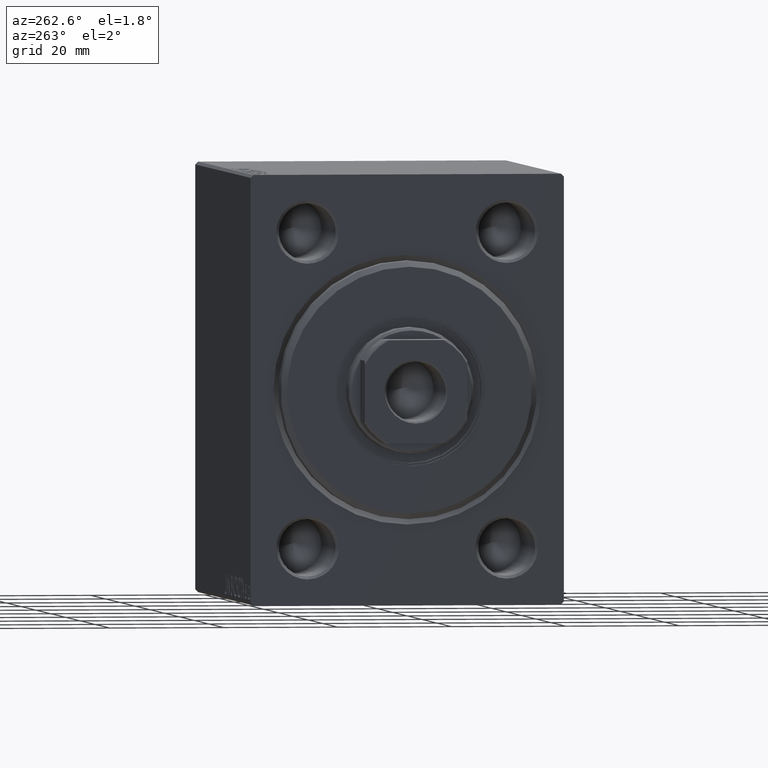
[diagram: clean part render]
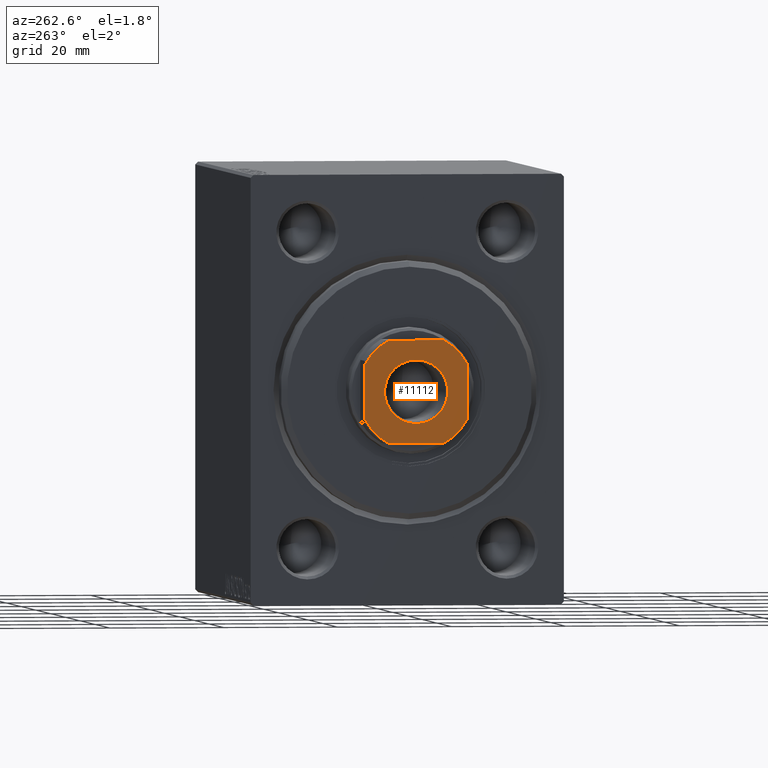
[diagram: same view with one face highlighted and labeled with its STEP entity id]
A machine part, auxiliary view. The second image highlights one B-rep face of the part: STEP entity #11112.
In plain terms, the highlighted planar face has unit normal (-1, 0, 0).
Its self-contained STEP definition (entity closure, byte-faithful):
#1230 = ORIENTED_EDGE ( 'NONE', *, *, #19989, .T. ) ;
#3379 = CIRCLE ( 'NONE', #24841, 10.20000000000000462 ) ;
#3675 = ORIENTED_EDGE ( 'NONE', *, *, #44329, .T. ) ;
#3704 = CARTESIAN_POINT ( 'NONE',  ( 4.800000000000012257, 8.999999999999998224, 77.00000000000001421 ) ) ;
#3989 = DIRECTION ( 'NONE',  ( -0.000000000000000000, 0.000000000000000000, 1.000000000000000000 ) ) ;
#4130 = DIRECTION ( 'NONE',  ( 1.000000000000000000, 0.000000000000000000, 0.000000000000000000 ) ) ;
#4158 = ORIENTED_EDGE ( 'NONE', *, *, #17921, .T. ) ;
#4511 = DIRECTION ( 'NONE',  ( 1.000000000000000000, 0.000000000000000000, 0.000000000000000000 ) ) ;
#5530 = DIRECTION ( 'NONE',  ( 1.000000000000000000, 0.000000000000000000, 0.000000000000000000 ) ) ;
#5993 = CIRCLE ( 'NONE', #42530, 10.20000000000000462 ) ;
#6713 = VERTEX_POINT ( 'NONE', #31796 ) ;
#6916 = CIRCLE ( 'NONE', #10480, 5.550000000000013145 ) ;
#7040 = CARTESIAN_POINT ( 'NONE',  ( 0.000000000000000000, 0.000000000000000000, 77.00000000000001421 ) ) ;
#8205 = CARTESIAN_POINT ( 'NONE',  ( 0.000000000000000000, 0.000000000000000000, 77.00000000000001421 ) ) ;
#8488 = VECTOR ( 'NONE', #40329, 1000.000000000000000 ) ;
#9152 = LINE ( 'NONE', #36529, #8488 ) ;
#9735 = CARTESIAN_POINT ( 'NONE',  ( -4.799999999999990941, 8.999999999999998224, 77.00000000000001421 ) ) ;
#10243 = CARTESIAN_POINT ( 'NONE',  ( 0.000000000000000000, 0.000000000000000000, 77.00000000000001421 ) ) ;
#10386 = CARTESIAN_POINT ( 'NONE',  ( 0.000000000000000000, 0.000000000000000000, 77.00000000000001421 ) ) ;
#10480 = AXIS2_PLACEMENT_3D ( 'NONE', #41975, #31872, #4511 ) ;
#10605 = DIRECTION ( 'NONE',  ( -0.000000000000000000, 0.000000000000000000, 1.000000000000000000 ) ) ;
#11044 = DIRECTION ( 'NONE',  ( -1.927470528863119049E-16, 1.000000000000000000, -0.000000000000000000 ) ) ;
#11112 = ADVANCED_FACE ( 'NONE', ( #44388, #30676 ), #14284, .T. ) ;
#11683 = EDGE_CURVE ( 'NONE', #28257, #34453, #27715, .T. ) ;
#12214 = EDGE_CURVE ( 'NONE', #21569, #20659, #28521, .T. ) ;
#13443 = VERTEX_POINT ( 'NONE', #31829 ) ;
#14284 = PLANE ( 'NONE',  #14757 ) ;
#14757 = AXIS2_PLACEMENT_3D ( 'NONE', #10243, #3989, #31337 ) ;
#14970 = DIRECTION ( 'NONE',  ( 1.000000000000000000, 0.000000000000000000, 0.000000000000000000 ) ) ;
#15701 = VECTOR ( 'NONE', #11044, 1000.000000000000000 ) ;
#16709 = AXIS2_PLACEMENT_3D ( 'NONE', #10386, #34841, #4130 ) ;
#16757 = CARTESIAN_POINT ( 'NONE',  ( 8.999999999999998224, 4.800000000000010481, 77.00000000000001421 ) ) ;
#17921 = EDGE_CURVE ( 'NONE', #35712, #28257, #9152, .T. ) ;
#18222 = CARTESIAN_POINT ( 'NONE',  ( 9.000000000000001776, -4.800000000000007816, 77.00000000000001421 ) ) ;
#18603 = LINE ( 'NONE', #32292, #15701 ) ;
#18613 = ORIENTED_EDGE ( 'NONE', *, *, #12214, .T. ) ;
#18962 = DIRECTION ( 'NONE',  ( -0.000000000000000000, 0.000000000000000000, 1.000000000000000000 ) ) ;
#19300 = ORIENTED_EDGE ( 'NONE', *, *, #30636, .T. ) ;
#19551 = DIRECTION ( 'NONE',  ( -0.000000000000000000, 0.000000000000000000, 1.000000000000000000 ) ) ;
#19989 = EDGE_CURVE ( 'NONE', #26244, #44182, #18603, .T. ) ;
#20659 = VERTEX_POINT ( 'NONE', #9735 ) ;
#21569 = VERTEX_POINT ( 'NONE', #3704 ) ;
#24813 = CARTESIAN_POINT ( 'NONE',  ( 0.000000000000000000, 0.000000000000000000, 77.00000000000001421 ) ) ;
#24841 = AXIS2_PLACEMENT_3D ( 'NONE', #8205, #18962, #5530 ) ;
#25040 = DIRECTION ( 'NONE',  ( -0.000000000000000000, 0.000000000000000000, 1.000000000000000000 ) ) ;
#25325 = VECTOR ( 'NONE', #14970, 1000.000000000000000 ) ;
#26093 = CARTESIAN_POINT ( 'NONE',  ( 0.000000000000000000, 0.000000000000000000, 77.00000000000001421 ) ) ;
#26234 = CARTESIAN_POINT ( 'NONE',  ( -8.999999999999998224, -4.799999999999999822, 77.00000000000001421 ) ) ;
#26244 = VERTEX_POINT ( 'NONE', #18222 ) ;
#26295 = VERTEX_POINT ( 'NONE', #42930 ) ;
#26607 = ORIENTED_EDGE ( 'NONE', *, *, #11683, .T. ) ;
#27715 = CIRCLE ( 'NONE', #37738, 10.19999999999999929 ) ;
#27938 = ORIENTED_EDGE ( 'NONE', *, *, #34222, .T. ) ;
#28257 = VERTEX_POINT ( 'NONE', #26234 ) ;
#28521 = LINE ( 'NONE', #30992, #39145 ) ;
#29223 = DIRECTION ( 'NONE',  ( 1.000000000000000000, 0.000000000000000000, 0.000000000000000000 ) ) ;
#29705 = CIRCLE ( 'NONE', #38312, 10.19999999999999396 ) ;
#30227 = EDGE_CURVE ( 'NONE', #34453, #13443, #43250, .T. ) ;
#30636 = EDGE_CURVE ( 'NONE', #13443, #26244, #5993, .T. ) ;
#30676 = FACE_OUTER_BOUND ( 'NONE', #34558, .T. ) ;
#30840 = ORIENTED_EDGE ( 'NONE', *, *, #30227, .T. ) ;
#30924 = EDGE_CURVE ( 'NONE', #6713, #26295, #43248, .T. ) ;
#30992 = CARTESIAN_POINT ( 'NONE',  ( -9.000000000000001776, 8.999999999999998224, 77.00000000000001421 ) ) ;
#31022 = DIRECTION ( 'NONE',  ( 1.000000000000000000, 0.000000000000000000, 0.000000000000000000 ) ) ;
#31337 = DIRECTION ( 'NONE',  ( 1.000000000000000000, 0.000000000000000000, 0.000000000000000000 ) ) ;
#31796 = CARTESIAN_POINT ( 'NONE',  ( -5.550000000000013145, 6.796789735267826558E-16, 77.00000000000001421 ) ) ;
#31829 = CARTESIAN_POINT ( 'NONE',  ( 4.800000000000006928, -9.000000000000001776, 77.00000000000001421 ) ) ;
#31872 = DIRECTION ( 'NONE',  ( 0.000000000000000000, -0.000000000000000000, -1.000000000000000000 ) ) ;
#32292 = CARTESIAN_POINT ( 'NONE',  ( 8.999999999999998224, 8.999999999999998224, 77.00000000000001421 ) ) ;
#34222 = EDGE_CURVE ( 'NONE', #20659, #35712, #29705, .T. ) ;
#34453 = VERTEX_POINT ( 'NONE', #42592 ) ;
#34558 = EDGE_LOOP ( 'NONE', ( #1230, #3675, #18613, #27938, #4158, #26607, #30840, #19300 ) ) ;
#34841 = DIRECTION ( 'NONE',  ( 0.000000000000000000, -0.000000000000000000, -1.000000000000000000 ) ) ;
#35009 = ORIENTED_EDGE ( 'NONE', *, *, #30924, .T. ) ;
#35300 = CARTESIAN_POINT ( 'NONE',  ( -9.000000000000001776, 4.799999999999986500, 77.00000000000001421 ) ) ;
#35712 = VERTEX_POINT ( 'NONE', #35300 ) ;
#36529 = CARTESIAN_POINT ( 'NONE',  ( -9.000000000000001776, 8.999999999999998224, 77.00000000000001421 ) ) ;
#37067 = EDGE_LOOP ( 'NONE', ( #44032, #35009 ) ) ;
#37738 = AXIS2_PLACEMENT_3D ( 'NONE', #24813, #25040, #42089 ) ;
#37951 = DIRECTION ( 'NONE',  ( -1.000000000000000000, -0.000000000000000000, -0.000000000000000000 ) ) ;
#38312 = AXIS2_PLACEMENT_3D ( 'NONE', #26093, #19551, #29223 ) ;
#39145 = VECTOR ( 'NONE', #37951, 1000.000000000000000 ) ;
#39208 = CARTESIAN_POINT ( 'NONE',  ( -8.999999999999998224, -9.000000000000001776, 77.00000000000001421 ) ) ;
#40329 = DIRECTION ( 'NONE',  ( 1.927470528863119049E-16, -1.000000000000000000, 0.000000000000000000 ) ) ;
#41975 = CARTESIAN_POINT ( 'NONE',  ( 0.000000000000000000, 0.000000000000000000, 77.00000000000001421 ) ) ;
#42089 = DIRECTION ( 'NONE',  ( 1.000000000000000000, 0.000000000000000000, 0.000000000000000000 ) ) ;
#42530 = AXIS2_PLACEMENT_3D ( 'NONE', #7040, #10605, #31022 ) ;
#42592 = CARTESIAN_POINT ( 'NONE',  ( -4.799999999999995381, -9.000000000000001776, 77.00000000000001421 ) ) ;
#42930 = CARTESIAN_POINT ( 'NONE',  ( 5.550000000000013145, 0.000000000000000000, 77.00000000000001421 ) ) ;
#43248 = CIRCLE ( 'NONE', #16709, 5.550000000000013145 ) ;
#43250 = LINE ( 'NONE', #39208, #25325 ) ;
#43765 = EDGE_CURVE ( 'NONE', #26295, #6713, #6916, .T. ) ;
#44032 = ORIENTED_EDGE ( 'NONE', *, *, #43765, .T. ) ;
#44182 = VERTEX_POINT ( 'NONE', #16757 ) ;
#44329 = EDGE_CURVE ( 'NONE', #44182, #21569, #3379, .T. ) ;
#44388 = FACE_BOUND ( 'NONE', #37067, .T. ) ;